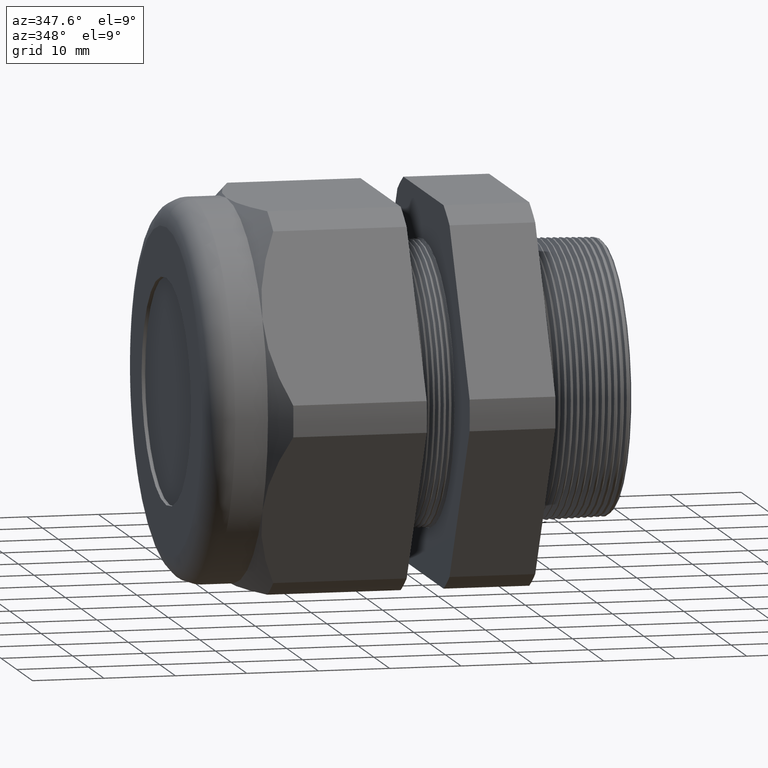
[diagram: clean part render]
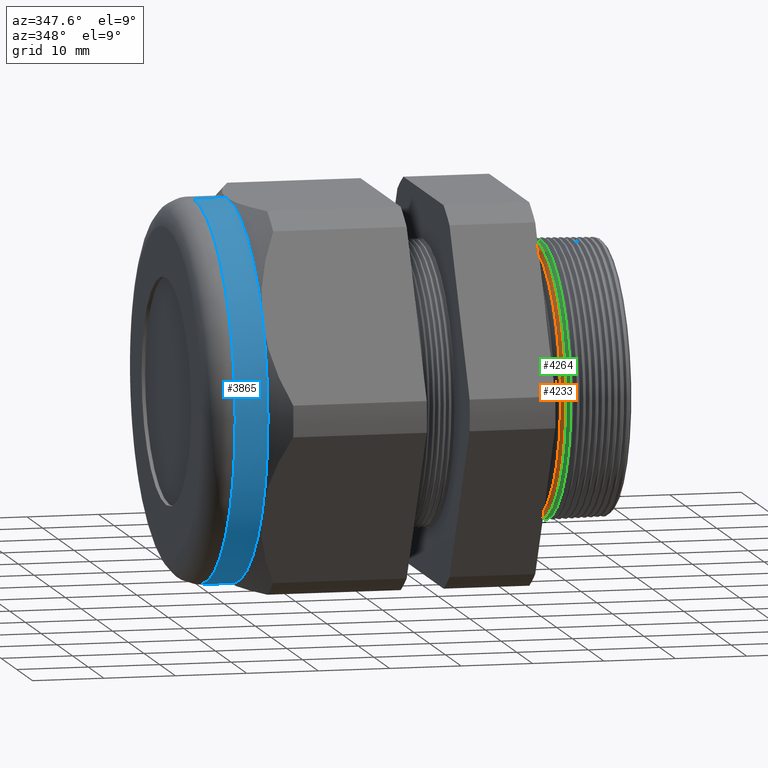
[diagram: same view with three faces highlighted in distinct colors, each labeled with its STEP entity id]
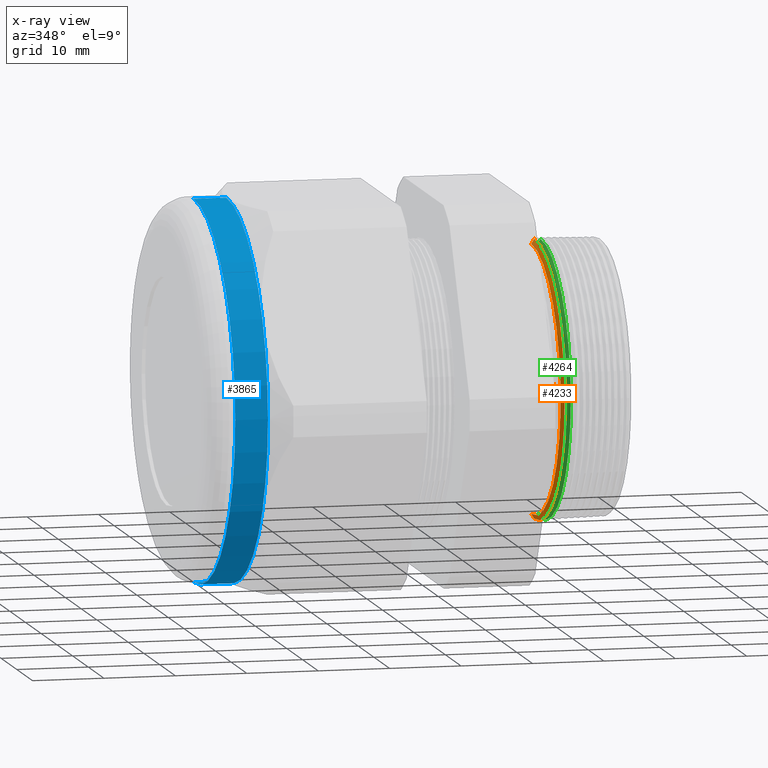
[diagram: x-ray of the same camera — body ghosted, the three highlighted faces saturated]
A machine part, auxiliary view with three faces highlighted in distinct colors.
The next image is the same camera in x-ray (body ghosted, the three faces saturated) — at least one of them is partly hidden behind the body in this view.
Their STEP definitions:

[orange] entity #4233 — the highlighted conical surface has half-angle 58.5 deg.
#1706 = DIRECTION ( 'NONE',  ( 0.5224985647159348100, 0.0000000000000000000, -0.8526401643541007300 ) ) ;
#1707 = VECTOR ( 'NONE', #1706, 39.37007874015748900 ) ;
#1708 = CARTESIAN_POINT ( 'NONE',  ( -0.1884707356790752100, 0.0000000000000000000, -0.7359962276773550600 ) ) ;
#1709 = LINE ( 'NONE', #1708, #1707 ) ;
#1755 = CARTESIAN_POINT ( 'NONE',  ( -0.1884707356790752100, 9.182685790054578000E-017, -0.7359962276773550600 ) ) ;
#1756 = CARTESIAN_POINT ( 'NONE',  ( -0.1884707356790752100, 0.0000000000000000000, 0.7359962276773550600 ) ) ;
#1757 = DIRECTION ( 'NONE',  ( 0.5224985647159348100, 1.044183048100722500E-016, 0.8526401643541007300 ) ) ;
#1758 = VECTOR ( 'NONE', #1757, 39.37007874015748900 ) ;
#1759 = CARTESIAN_POINT ( 'NONE',  ( -0.1884707356790752100, 9.013354244095994900E-017, 0.7359962276773550600 ) ) ;
#1760 = LINE ( 'NONE', #1759, #1758 ) ;
#1761 = CARTESIAN_POINT ( 'NONE',  ( -0.1720291532523824100, 0.0000000000000000000, 0.7628264516994185400 ) ) ;
#1767 = CARTESIAN_POINT ( 'NONE',  ( -0.1720291532523824100, 9.341929723786260700E-017, -0.7628264516994185400 ) ) ;
#2221 = DIRECTION ( 'NONE',  ( 0.0000000000000000000, 0.0000000000000000000, -1.000000000000000000 ) ) ;
#2222 = DIRECTION ( 'NONE',  ( 1.000000000000000000, 0.0000000000000000000, 0.0000000000000000000 ) ) ;
#2223 = AXIS2_PLACEMENT_3D ( 'NONE', #2230, #2222, #2221 ) ;
#2224 = CONICAL_SURFACE ( 'NONE', #2223, 0.7359962276773550600, 1.021017612416699200 ) ;
#2225 = FACE_OUTER_BOUND ( 'NONE', #4226, .T. ) ;
#2230 = CARTESIAN_POINT ( 'NONE',  ( -0.1884707356790752100, 0.0000000000000000000, 0.0000000000000000000 ) ) ;
#2267 = DIRECTION ( 'NONE',  ( 0.0000000000000000000, 0.0000000000000000000, -1.000000000000000000 ) ) ;
#2268 = DIRECTION ( 'NONE',  ( 1.000000000000000000, 0.0000000000000000000, 0.0000000000000000000 ) ) ;
#2269 = CARTESIAN_POINT ( 'NONE',  ( -0.1884707356790752100, 0.0000000000000000000, 0.0000000000000000000 ) ) ;
#2270 = AXIS2_PLACEMENT_3D ( 'NONE', #2269, #2268, #2267 ) ;
#2271 = CIRCLE ( 'NONE', #2270, 0.7359962276773550600 ) ;
#2800 = DIRECTION ( 'NONE',  ( 0.0000000000000000000, 0.0000000000000000000, -1.000000000000000000 ) ) ;
#2801 = DIRECTION ( 'NONE',  ( -1.000000000000000000, 0.0000000000000000000, 0.0000000000000000000 ) ) ;
#2802 = AXIS2_PLACEMENT_3D ( 'NONE', #2808, #2801, #2800 ) ;
#2803 = CIRCLE ( 'NONE', #2802, 0.7628264516994185400 ) ;
#2808 = CARTESIAN_POINT ( 'NONE',  ( -0.1720291532523824100, 0.0000000000000000000, 0.0000000000000000000 ) ) ;
#3953 = EDGE_CURVE ( 'NONE', #3961, #3955, #1709, .T. ) ;
#3955 = VERTEX_POINT ( 'NONE', #1767 ) ;
#3957 = VERTEX_POINT ( 'NONE', #1761 ) ;
#3958 = EDGE_CURVE ( 'NONE', #3960, #3957, #1760, .T. ) ;
#3960 = VERTEX_POINT ( 'NONE', #1756 ) ;
#3961 = VERTEX_POINT ( 'NONE', #1755 ) ;
#4223 = ORIENTED_EDGE ( 'NONE', *, *, #3958, .F. ) ;
#4226 = EDGE_LOOP ( 'NONE', ( #4223, #4228, #4227, #4285 ) ) ;
#4227 = ORIENTED_EDGE ( 'NONE', *, *, #3953, .T. ) ;
#4228 = ORIENTED_EDGE ( 'NONE', *, *, #4239, .T. ) ;
#4233 = ADVANCED_FACE ( 'NONE', ( #2225 ), #2224, .T. ) ;
#4239 = EDGE_CURVE ( 'NONE', #3960, #3961, #2271, .T. ) ;
#4285 = ORIENTED_EDGE ( 'NONE', *, *, #4547, .T. ) ;
#4547 = EDGE_CURVE ( 'NONE', #3955, #3957, #2803, .T. ) ;

[blue] entity #3865 — the highlighted cylindrical surface (partial cylindrical patch) has radius 26.543 mm, axis along (1, 0, 0).
#1425 = CARTESIAN_POINT ( 'NONE',  ( -1.869292000000000000, -0.9049965469547386300, 0.5224999999999996300 ) ) ;
#1555 = DIRECTION ( 'NONE',  ( 0.0000000000000000000, 0.0000000000000000000, 1.000000000000000000 ) ) ;
#1556 = DIRECTION ( 'NONE',  ( 1.000000000000000000, 0.0000000000000000000, 0.0000000000000000000 ) ) ;
#1557 = CARTESIAN_POINT ( 'NONE',  ( -2.049999999999999800, 0.0000000000000000000, 0.0000000000000000000 ) ) ;
#1558 = AXIS2_PLACEMENT_3D ( 'NONE', #1557, #1556, #1555 ) ;
#1559 = CIRCLE ( 'NONE', #1558, 1.044999999999999900 ) ;
#1602 = DIRECTION ( 'NONE',  ( 0.0000000000000000000, 0.0000000000000000000, -1.000000000000000000 ) ) ;
#1603 = DIRECTION ( 'NONE',  ( 1.000000000000000000, 0.0000000000000000000, 0.0000000000000000000 ) ) ;
#1604 = CARTESIAN_POINT ( 'NONE',  ( 0.0000000000000000000, 0.0000000000000000000, 0.0000000000000000000 ) ) ;
#1605 = AXIS2_PLACEMENT_3D ( 'NONE', #1604, #1603, #1602 ) ;
#1606 = CYLINDRICAL_SURFACE ( 'NONE', #1605, 1.044999999999999900 ) ;
#1607 = FACE_OUTER_BOUND ( 'NONE', #3866, .T. ) ;
#1609 = DIRECTION ( 'NONE',  ( 0.0000000000000000000, 0.0000000000000000000, -1.000000000000000000 ) ) ;
#1610 = DIRECTION ( 'NONE',  ( 1.000000000000000000, 0.0000000000000000000, 0.0000000000000000000 ) ) ;
#1611 = CARTESIAN_POINT ( 'NONE',  ( -1.869292000000000000, 0.0000000000000000000, 0.0000000000000000000 ) ) ;
#1612 = AXIS2_PLACEMENT_3D ( 'NONE', #1611, #1610, #1609 ) ;
#1613 = CIRCLE ( 'NONE', #1612, 1.044999999999999700 ) ;
#1621 = DIRECTION ( 'NONE',  ( 0.0000000000000000000, 0.0000000000000000000, -1.000000000000000000 ) ) ;
#1622 = DIRECTION ( 'NONE',  ( 1.000000000000000000, 0.0000000000000000000, 0.0000000000000000000 ) ) ;
#1623 = CARTESIAN_POINT ( 'NONE',  ( -1.869292000000000000, 0.0000000000000000000, 0.0000000000000000000 ) ) ;
#1624 = AXIS2_PLACEMENT_3D ( 'NONE', #1623, #1622, #1621 ) ;
#1625 = CIRCLE ( 'NONE', #1624, 1.044999999999999700 ) ;
#1662 = DIRECTION ( 'NONE',  ( 0.0000000000000000000, 0.0000000000000000000, -1.000000000000000000 ) ) ;
#1663 = DIRECTION ( 'NONE',  ( 1.000000000000000000, 0.0000000000000000000, 0.0000000000000000000 ) ) ;
#1664 = CARTESIAN_POINT ( 'NONE',  ( -1.869292000000000000, 0.0000000000000000000, 0.0000000000000000000 ) ) ;
#1665 = AXIS2_PLACEMENT_3D ( 'NONE', #1664, #1663, #1662 ) ;
#1666 = CIRCLE ( 'NONE', #1665, 1.044999999999999700 ) ;
#1773 = LINE ( 'NONE', #1830, #1829 ) ;
#1802 = DIRECTION ( 'NONE',  ( 1.000000000000000000, 0.0000000000000000000, 0.0000000000000000000 ) ) ;
#1803 = VECTOR ( 'NONE', #1802, 39.37007874015748100 ) ;
#1804 = CARTESIAN_POINT ( 'NONE',  ( 0.0000000000000000000, 1.279755905108984100E-016, 1.044999999999999900 ) ) ;
#1805 = LINE ( 'NONE', #1804, #1803 ) ;
#1806 = CARTESIAN_POINT ( 'NONE',  ( -1.869292000000000000, 0.0000000000000000000, 1.044999999999999900 ) ) ;
#1827 = CARTESIAN_POINT ( 'NONE',  ( -1.869292000000000000, 0.0000000000000000000, -1.044999999999999900 ) ) ;
#1828 = DIRECTION ( 'NONE',  ( 1.000000000000000000, 0.0000000000000000000, 0.0000000000000000000 ) ) ;
#1829 = VECTOR ( 'NONE', #1828, 39.37007874015748100 ) ;
#1830 = CARTESIAN_POINT ( 'NONE',  ( 0.0000000000000000000, 0.0000000000000000000, -1.044999999999999900 ) ) ;
#2485 = CARTESIAN_POINT ( 'NONE',  ( -2.049999999999999800, 1.279755905108984100E-016, 1.044999999999999900 ) ) ;
#2499 = CARTESIAN_POINT ( 'NONE',  ( -2.049999999999999800, 0.0000000000000000000, -1.044999999999999900 ) ) ;
#2919 = CARTESIAN_POINT ( 'NONE',  ( -1.869292000000000000, -0.9049965469547380800, -0.5225000000000000800 ) ) ;
#3792 = VERTEX_POINT ( 'NONE', #1425 ) ;
#3857 = ORIENTED_EDGE ( 'NONE', *, *, #3904, .F. ) ;
#3859 = ORIENTED_EDGE ( 'NONE', *, *, #3977, .T. ) ;
#3860 = EDGE_CURVE ( 'NONE', #4368, #4390, #1559, .T. ) ;
#3862 = ORIENTED_EDGE ( 'NONE', *, *, #3994, .F. ) ;
#3864 = ORIENTED_EDGE ( 'NONE', *, *, #3860, .T. ) ;
#3865 = ADVANCED_FACE ( 'NONE', ( #1607 ), #1606, .T. ) ;
#3866 = EDGE_LOOP ( 'NONE', ( #3862, #3864, #3859, #3857, #3901, #3893 ) ) ;
#3893 = ORIENTED_EDGE ( 'NONE', *, *, #3897, .F. ) ;
#3894 = EDGE_CURVE ( 'NONE', #3792, #4618, #1625, .T. ) ;
#3897 = EDGE_CURVE ( 'NONE', #3993, #3792, #1613, .T. ) ;
#3901 = ORIENTED_EDGE ( 'NONE', *, *, #3894, .F. ) ;
#3904 = EDGE_CURVE ( 'NONE', #4618, #3978, #1666, .T. ) ;
#3977 = EDGE_CURVE ( 'NONE', #4390, #3978, #1773, .T. ) ;
#3978 = VERTEX_POINT ( 'NONE', #1827 ) ;
#3993 = VERTEX_POINT ( 'NONE', #1806 ) ;
#3994 = EDGE_CURVE ( 'NONE', #4368, #3993, #1805, .T. ) ;
#4368 = VERTEX_POINT ( 'NONE', #2485 ) ;
#4390 = VERTEX_POINT ( 'NONE', #2499 ) ;
#4618 = VERTEX_POINT ( 'NONE', #2919 ) ;

[green] entity #4264 — the highlighted conical surface has half-angle 58.5 deg.
#54 = VERTEX_POINT ( 'NONE', #579 ) ;
#61 = EDGE_CURVE ( 'NONE', #78, #54, #633, .T. ) ;
#72 = VERTEX_POINT ( 'NONE', #606 ) ;
#73 = EDGE_CURVE ( 'NONE', #77, #72, #605, .T. ) ;
#77 = VERTEX_POINT ( 'NONE', #601 ) ;
#78 = VERTEX_POINT ( 'NONE', #600 ) ;
#579 = CARTESIAN_POINT ( 'NONE',  ( -0.1375819195166167500, 9.330883010902176800E-017, -0.7619244191385384800 ) ) ;
#600 = CARTESIAN_POINT ( 'NONE',  ( -0.1534707356790752100, 9.176992860770305000E-017, -0.7359962276773550600 ) ) ;
#601 = CARTESIAN_POINT ( 'NONE',  ( -0.1534707356790752100, 0.0000000000000000000, 0.7359962276773550600 ) ) ;
#602 = DIRECTION ( 'NONE',  ( 0.5224985647159348100, 1.044183048100722500E-016, 0.8526401643541007300 ) ) ;
#603 = VECTOR ( 'NONE', #602, 39.37007874015748900 ) ;
#604 = CARTESIAN_POINT ( 'NONE',  ( -0.1534707356790752100, 9.013354244095994900E-017, 0.7359962276773550600 ) ) ;
#605 = LINE ( 'NONE', #604, #603 ) ;
#606 = CARTESIAN_POINT ( 'NONE',  ( -0.1375819195166167500, 0.0000000000000000000, 0.7619244191385384800 ) ) ;
#630 = DIRECTION ( 'NONE',  ( 0.5224985647159348100, 0.0000000000000000000, -0.8526401643541007300 ) ) ;
#631 = VECTOR ( 'NONE', #630, 39.37007874015748900 ) ;
#632 = CARTESIAN_POINT ( 'NONE',  ( -0.1534707356790752100, 0.0000000000000000000, -0.7359962276773550600 ) ) ;
#633 = LINE ( 'NONE', #632, #631 ) ;
#2277 = DIRECTION ( 'NONE',  ( 0.0000000000000000000, 0.0000000000000000000, -1.000000000000000000 ) ) ;
#2278 = DIRECTION ( 'NONE',  ( 1.000000000000000000, 0.0000000000000000000, 0.0000000000000000000 ) ) ;
#2279 = AXIS2_PLACEMENT_3D ( 'NONE', #2285, #2278, #2277 ) ;
#2280 = CIRCLE ( 'NONE', #2279, 0.7359962276773550600 ) ;
#2281 = DIRECTION ( 'NONE',  ( 0.0000000000000000000, 0.0000000000000000000, -1.000000000000000000 ) ) ;
#2282 = DIRECTION ( 'NONE',  ( 1.000000000000000000, 0.0000000000000000000, 0.0000000000000000000 ) ) ;
#2283 = CARTESIAN_POINT ( 'NONE',  ( -0.1534707356790752100, 0.0000000000000000000, 0.0000000000000000000 ) ) ;
#2284 = AXIS2_PLACEMENT_3D ( 'NONE', #2283, #2282, #2281 ) ;
#2285 = CARTESIAN_POINT ( 'NONE',  ( -0.1534707356790752100, 0.0000000000000000000, 0.0000000000000000000 ) ) ;
#2286 = CONICAL_SURFACE ( 'NONE', #2284, 0.7359962276773550600, 1.021017612416699200 ) ;
#2287 = FACE_OUTER_BOUND ( 'NONE', #4263, .T. ) ;
#2833 = DIRECTION ( 'NONE',  ( 0.0000000000000000000, 0.0000000000000000000, -1.000000000000000000 ) ) ;
#2834 = DIRECTION ( 'NONE',  ( -1.000000000000000000, 0.0000000000000000000, 0.0000000000000000000 ) ) ;
#2835 = AXIS2_PLACEMENT_3D ( 'NONE', #2842, #2834, #2833 ) ;
#2836 = CIRCLE ( 'NONE', #2835, 0.7619244191385384800 ) ;
#2842 = CARTESIAN_POINT ( 'NONE',  ( -0.1375819195166167500, 0.0000000000000000000, 0.0000000000000000000 ) ) ;
#4259 = ORIENTED_EDGE ( 'NONE', *, *, #4267, .T. ) ;
#4262 = ORIENTED_EDGE ( 'NONE', *, *, #73, .F. ) ;
#4263 = EDGE_LOOP ( 'NONE', ( #4262, #4259, #4321, #4355 ) ) ;
#4264 = ADVANCED_FACE ( 'NONE', ( #2287 ), #2286, .T. ) ;
#4267 = EDGE_CURVE ( 'NONE', #77, #78, #2280, .T. ) ;
#4321 = ORIENTED_EDGE ( 'NONE', *, *, #61, .T. ) ;
#4355 = ORIENTED_EDGE ( 'NONE', *, *, #4561, .T. ) ;
#4561 = EDGE_CURVE ( 'NONE', #54, #72, #2836, .T. ) ;